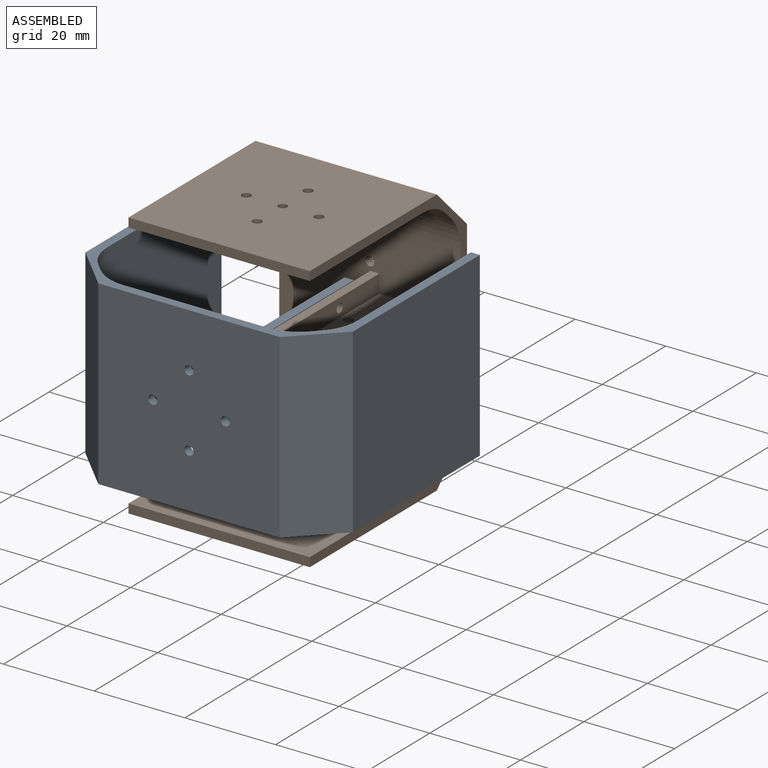
[diagram: assembled view]
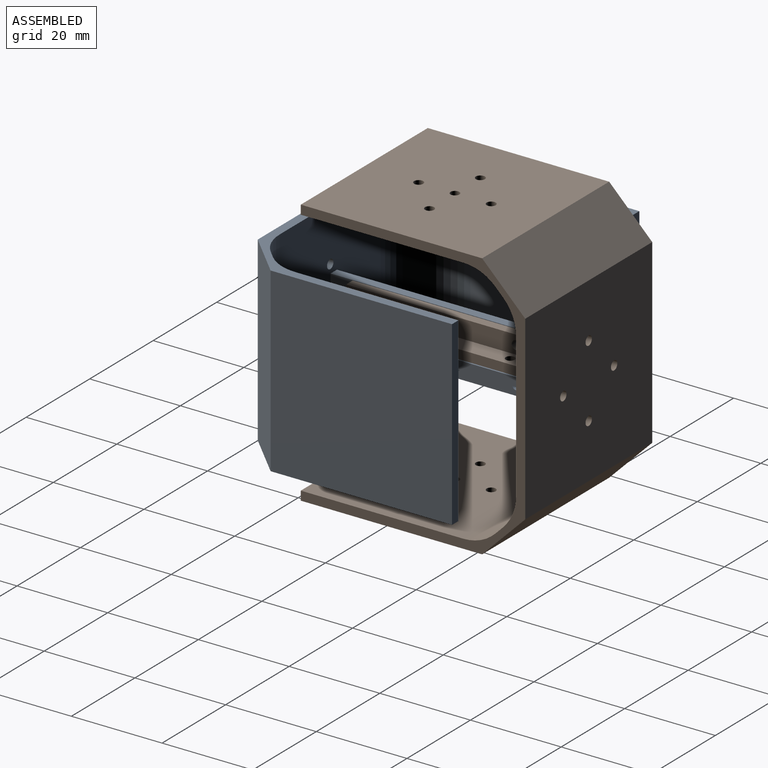
[diagram: assembled view, second angle]
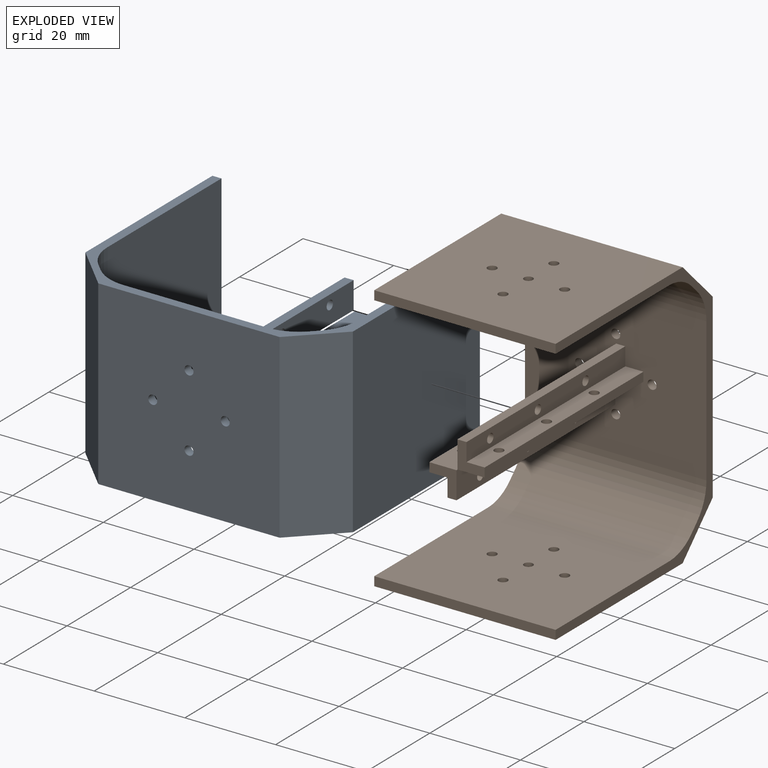
[diagram: exploded view]
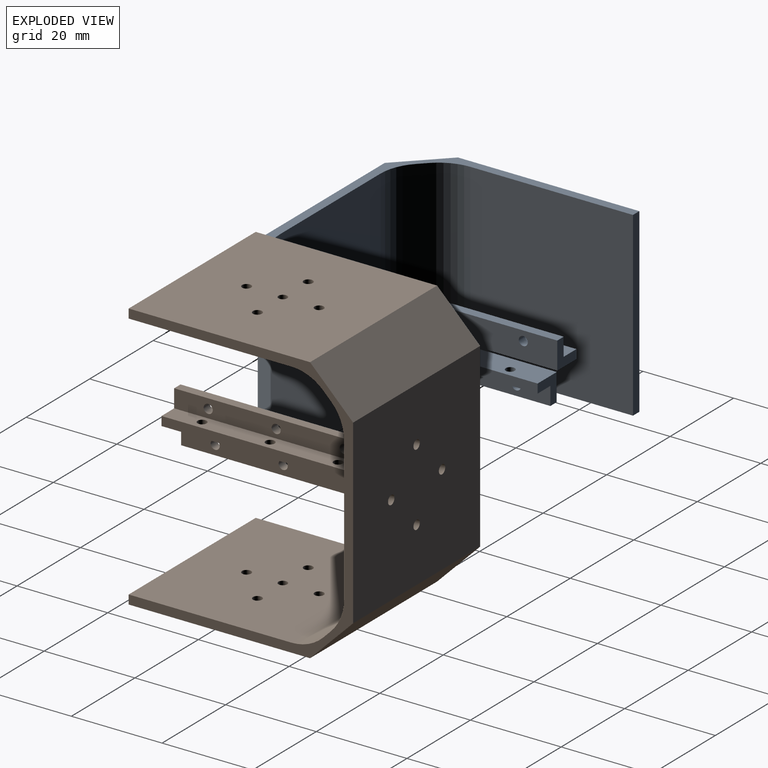
[diagram: exploded view, second angle]
ASSEMBLY  parts=2 mates=2
PART A: 48 faces, bbox 59x52x40 mm
  f0: plane 59x49.5mm, normal (0,0,-1), area 282.6mm2, adj f6,f7,f8,f9,f10,f11,f12,f13
  f1: cylinder r=1mm len=2mm, axis (0,1,0), area 12.6mm2, adj f6,f7
  f2: cylinder r=1mm len=2mm, axis (0,1,0), area 12.6mm2, adj f6,f7
  f3: cylinder r=1mm len=2mm, axis (0,1,0), area 12.6mm2, adj f6,f7
  f4: cylinder r=1mm len=2mm, axis (0,1,0), area 12.6mm2, adj f6,f7
  f5: plane 59x49.5mm, normal (0,0,1), area 282.6mm2, adj f6,f7,f8,f9,f10,f11,f12,f13
  f6: plane 40x40mm, normal (0,-1,0), area 1587.4mm2, adj f0,f1,f2,f3,f4,f5,f9,f16
  f7: plane 40x31.71mm, normal (0,1,0), area 1216mm2, adj f0,f1,f2,f3,f4,f5,f18,f19
  f8: plane 40x40mm, normal (-1,0,0), area 1600mm2, adj f0,f5,f9,f12
  f9: plane 40x9.5mm, normal (-0.71,-0.71,0), area 537.4mm2, adj f0,f5,f6,f8
  f10: plane 40x1.64mm, normal (0.71,0.71,0), area 92.9mm2, adj f0,f5,f45,f47
  f11: plane 40x35.86mm, normal (1,0,0), area 1434.3mm2, adj f0,f5,f12,f45
  f12: plane 40x2mm, normal (0,1,0), area 80mm2, adj f0,f5,f8,f11
  f13: plane 40x2mm, normal (0,1,0), area 80mm2, adj f0,f5,f14,f17
  f14: plane 40x35.86mm, normal (-1,0,0), area 1434.3mm2, adj f0,f5,f13,f44
  f15: plane 40x1.64mm, normal (-0.71,0.71,0), area 92.9mm2, adj f0,f5,f44,f46
  f16: plane 40x9.5mm, normal (0.71,-0.71,0), area 537.4mm2, adj f0,f5,f6,f17
  f17: plane 40x40mm, normal (1,0,0), area 1600mm2, adj f0,f5,f13,f16
  f18: plane 50x4mm, normal (0,0,1), area 190.6mm2, adj f7,f19,f23,f24,f35,f36,f37
  f19: plane 50x4mm, normal (-1,0,0), area 190.6mm2, adj f7,f18,f20,f24,f41,f42,f43
  f20: plane 50x2mm, normal (0,0,1), area 100mm2, adj f7,f19,f21,f24
  f21: plane 50x6mm, normal (1,0,0), area 290.6mm2, adj f7,f20,f22,f24,f41,f42,f43
  f22: plane 50x6mm, normal (0,0,-1), area 290.6mm2, adj f7,f21,f23,f24,f35,f36,f37
  f23: plane 50x2mm, normal (-1,0,0), area 100mm2, adj f7,f18,f22,f24
  f24: plane 6x6mm, normal (0,1,0), area 20mm2, adj f18,f19,f20,f21,f22,f23
  f25: plane 50x6mm, normal (-1,0,0), area 290.6mm2, adj f7,f26,f30,f31,f38,f39,f40
  f26: plane 50x6mm, normal (0,0,1), area 290.6mm2, adj f7,f25,f27,f31,f32,f33,f34
  f27: plane 50x2mm, normal (1,0,0), area 100mm2, adj f7,f26,f28,f31
  f28: plane 50x4mm, normal (0,0,-1), area 190.6mm2, adj f7,f27,f29,f31,f32,f33,f34
  f29: plane 50x4mm, normal (1,0,0), area 190.6mm2, adj f7,f28,f30,f31,f38,f39,f40
  f30: plane 50x2mm, normal (0,0,-1), area 100mm2, adj f7,f25,f29,f31
  f31: plane 6x6mm, normal (0,1,0), area 20mm2, adj f25,f26,f27,f28,f29,f30
  f32: cylinder r=1mm len=2mm, axis (0,0,-1), area 12.6mm2, adj f26,f28
  f33: cylinder r=1mm len=2mm, axis (0,0,-1), area 12.6mm2, adj f26,f28
  f34: cylinder r=1mm len=2mm, axis (0,0,-1), area 12.6mm2, adj f26,f28
  f35: cylinder r=1mm len=2mm, axis (0,0,-1), area 12.6mm2, adj f18,f22
  f36: cylinder r=1mm len=2mm, axis (0,0,-1), area 12.6mm2, adj f18,f22
  f37: cylinder r=1mm len=2mm, axis (0,0,-1), area 12.6mm2, adj f18,f22
  f38: cylinder r=1mm len=2mm, axis (-1,0,0), area 12.6mm2, adj f25,f29
  f39: cylinder r=1mm len=2mm, axis (-1,0,0), area 12.6mm2, adj f25,f29
  f40: cylinder r=1mm len=2mm, axis (-1,0,0), area 12.6mm2, adj f25,f29
  f41: cylinder r=1mm len=2mm, axis (-1,0,0), area 12.6mm2, adj f19,f21
  f42: cylinder r=1mm len=2mm, axis (-1,0,0), area 12.6mm2, adj f19,f21
  f43: cylinder r=1mm len=2mm, axis (-1,0,0), area 12.6mm2, adj f19,f21
  f44: cylinder r=10mm len=40mm, axis (0,0,-1), area 314.2mm2, adj f0,f5,f14,f15
  f45: cylinder r=10mm len=40mm, axis (0,0,-1), area 314.2mm2, adj f0,f5,f10,f11
  f46: cylinder r=10mm len=40mm, axis (0,0,1), area 314.2mm2, adj f0,f5,f7,f15
  f47: cylinder r=10mm len=40mm, axis (0,0,-1), area 314.2mm2, adj f0,f5,f7,f10
PART B: 58 faces, bbox 59x52x40 mm
  f0: plane 59x49.5mm, normal (0,0,-1), area 282.6mm2, adj f6,f7,f8,f9,f10,f11,f12,f13
  f1: cylinder r=1mm len=2mm, axis (0,1,0), area 12.6mm2, adj f6,f7
  f2: cylinder r=1mm len=2mm, axis (0,1,0), area 12.6mm2, adj f6,f7
  f3: cylinder r=1mm len=2mm, axis (0,1,0), area 12.6mm2, adj f6,f7
  f4: cylinder r=1mm len=2mm, axis (0,1,0), area 12.6mm2, adj f6,f7
  f5: plane 59x49.5mm, normal (0,0,1), area 282.6mm2, adj f6,f7,f8,f9,f10,f11,f12,f13
  f6: plane 40x40mm, normal (0,-1,0), area 1587.4mm2, adj f0,f1,f2,f3,f4,f5,f9,f16
  f7: plane 40x31.71mm, normal (0,1,0), area 1216mm2, adj f0,f1,f2,f3,f4,f5,f28,f29
  f8: plane 40x40mm, normal (-1,0,0), area 1584.5mm2, adj f0,f5,f9,f12,f23,f24,f25,f26
  f9: plane 40x9.5mm, normal (-0.71,-0.71,0), area 537.4mm2, adj f0,f5,f6,f8
  f10: plane 40x1.64mm, normal (0.71,0.71,0), area 92.9mm2, adj f0,f5,f55,f57
  f11: plane 40x35.86mm, normal (1,0,0), area 1418.8mm2, adj f0,f5,f12,f23,f24,f25,f26,f27
  f12: plane 40x2mm, normal (0,1,0), area 80mm2, adj f0,f5,f8,f11
  f13: plane 40x2mm, normal (0,1,0), area 80mm2, adj f0,f5,f14,f17
  f14: plane 40x35.86mm, normal (-1,0,0), area 1418.8mm2, adj f0,f5,f13,f18,f19,f20,f21,f22
  f15: plane 40x1.64mm, normal (-0.71,0.71,0), area 92.9mm2, adj f0,f5,f54,f56
  f16: plane 40x9.5mm, normal (0.71,-0.71,0), area 537.4mm2, adj f0,f5,f6,f17
  f17: plane 40x40mm, normal (1,0,0), area 1584.5mm2, adj f0,f5,f13,f16,f18,f19,f20,f21
  f18: cylinder r=0.97mm len=2mm, axis (1,0,0), area 12.1mm2, adj f14,f17
  f19: cylinder r=1mm len=2mm, axis (1,0,0), area 12.6mm2, adj f14,f17
  f20: cylinder r=1mm len=2mm, axis (1,0,0), area 12.6mm2, adj f14,f17
  f21: cylinder r=1mm len=2mm, axis (1,0,0), area 12.6mm2, adj f14,f17
  f22: cylinder r=1mm len=2mm, axis (1,0,0), area 12.6mm2, adj f14,f17
  f23: cylinder r=0.97mm len=2mm, axis (1,0,0), area 12.1mm2, adj f8,f11
  f24: cylinder r=1mm len=2mm, axis (1,0,0), area 12.6mm2, adj f8,f11
  f25: cylinder r=1mm len=2mm, axis (1,0,0), area 12.6mm2, adj f8,f11
  f26: cylinder r=1mm len=2mm, axis (1,0,0), area 12.6mm2, adj f8,f11
  f27: cylinder r=1mm len=2mm, axis (1,0,0), area 12.6mm2, adj f8,f11
  f28: plane 50x2mm, normal (1,0,0), area 100mm2, adj f7,f29,f33,f34
  f29: plane 50x6mm, normal (0,0,-1), area 290.6mm2, adj f7,f28,f30,f34,f45,f46,f47
  f30: plane 50x6mm, normal (-1,0,0), area 290.6mm2, adj f7,f29,f31,f34,f51,f52,f53
  f31: plane 50x2mm, normal (0,0,1), area 100mm2, adj f7,f30,f32,f34
  f32: plane 50x4mm, normal (1,0,0), area 190.6mm2, adj f7,f31,f33,f34,f51,f52,f53
  f33: plane 50x4mm, normal (0,0,1), area 190.6mm2, adj f7,f28,f32,f34,f45,f46,f47
  f34: plane 6x6mm, normal (0,1,0), area 20mm2, adj f28,f29,f30,f31,f32,f33
  f35: plane 50x4mm, normal (-1,0,0), area 190.6mm2, adj f7,f36,f40,f41,f48,f49,f50
  f36: plane 50x4mm, normal (0,0,-1), area 190.6mm2, adj f7,f35,f37,f41,f42,f43,f44
  f37: plane 50x2mm, normal (-1,0,0), area 100mm2, adj f7,f36,f38,f41
  f38: plane 50x6mm, normal (0,0,1), area 290.6mm2, adj f7,f37,f39,f41,f42,f43,f44
  f39: plane 50x6mm, normal (1,0,0), area 290.6mm2, adj f7,f38,f40,f41,f48,f49,f50
  f40: plane 50x2mm, normal (0,0,-1), area 100mm2, adj f7,f35,f39,f41
  f41: plane 6x6mm, normal (0,1,0), area 20mm2, adj f35,f36,f37,f38,f39,f40
  f42: cylinder r=1mm len=2mm, axis (0,0,-1), area 12.6mm2, adj f36,f38
  f43: cylinder r=1mm len=2mm, axis (0,0,-1), area 12.6mm2, adj f36,f38
  f44: cylinder r=1mm len=2mm, axis (0,0,-1), area 12.6mm2, adj f36,f38
  f45: cylinder r=1mm len=2mm, axis (0,0,-1), area 12.6mm2, adj f29,f33
  f46: cylinder r=1mm len=2mm, axis (0,0,-1), area 12.6mm2, adj f29,f33
  f47: cylinder r=1mm len=2mm, axis (0,0,-1), area 12.6mm2, adj f29,f33
  f48: cylinder r=1mm len=2mm, axis (-1,0,0), area 12.6mm2, adj f35,f39
  f49: cylinder r=1mm len=2mm, axis (-1,0,0), area 12.6mm2, adj f35,f39
  f50: cylinder r=1mm len=2mm, axis (-1,0,0), area 12.6mm2, adj f35,f39
  f51: cylinder r=1mm len=2mm, axis (-1,0,0), area 12.6mm2, adj f30,f32
  f52: cylinder r=1mm len=2mm, axis (-1,0,0), area 12.6mm2, adj f30,f32
  f53: cylinder r=1mm len=2mm, axis (-1,0,0), area 12.6mm2, adj f30,f32
  f54: cylinder r=10mm len=40mm, axis (0,0,-1), area 314.2mm2, adj f0,f5,f14,f15
  f55: cylinder r=10mm len=40mm, axis (0,0,-1), area 314.2mm2, adj f0,f5,f10,f11
  f56: cylinder r=10mm len=40mm, axis (0,0,1), area 314.2mm2, adj f0,f5,f7,f15
  f57: cylinder r=10mm len=40mm, axis (0,0,-1), area 314.2mm2, adj f0,f5,f7,f10
PLACE A t=(-16.55,-24.51,10.03)mm
PLACE B rot(axis=(0.71,0,0.71),180deg) t=(-16.55,30.49,10.03)mm
MATE cylindrical B.f47 <-> A.f41  axis (1,0,0) through (-14.45,-12.01,14.03)mm
MATE planar B.f29 <-> A.f25  axis (-1,0,0) through (-16.45,5.57,13.1)mm
